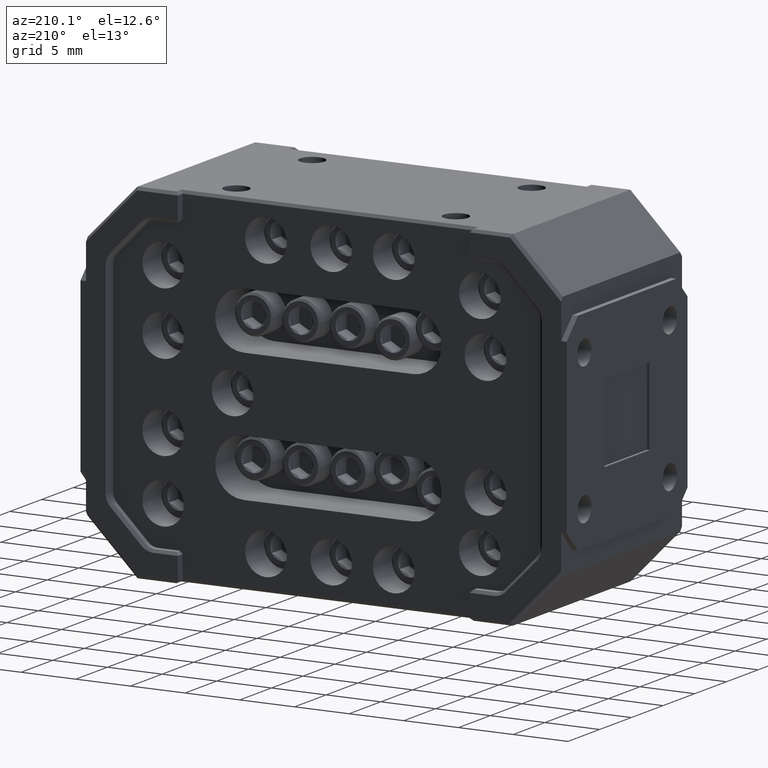
[diagram: clean part render]
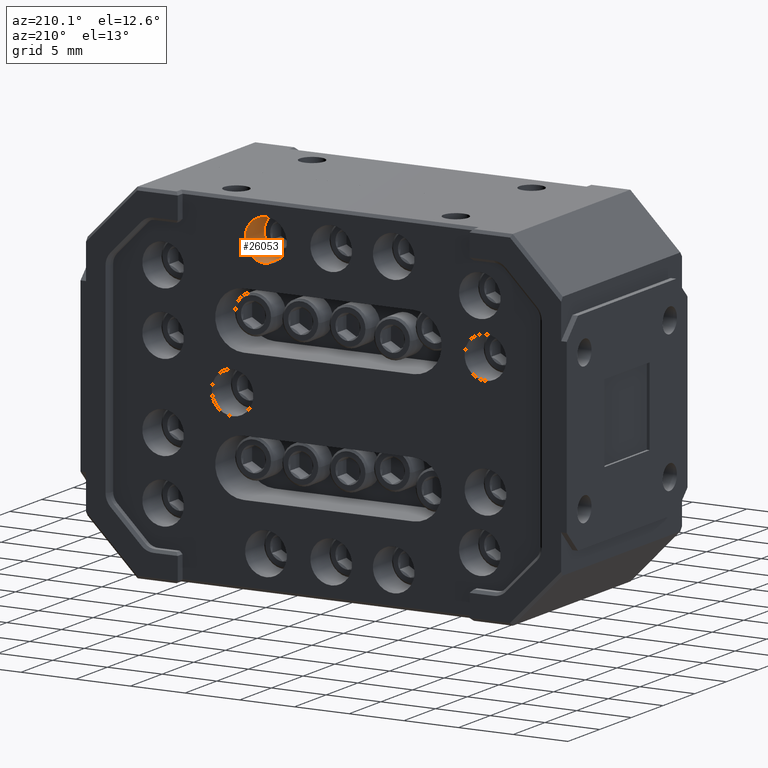
[diagram: same view with one face highlighted and labeled with its STEP entity id]
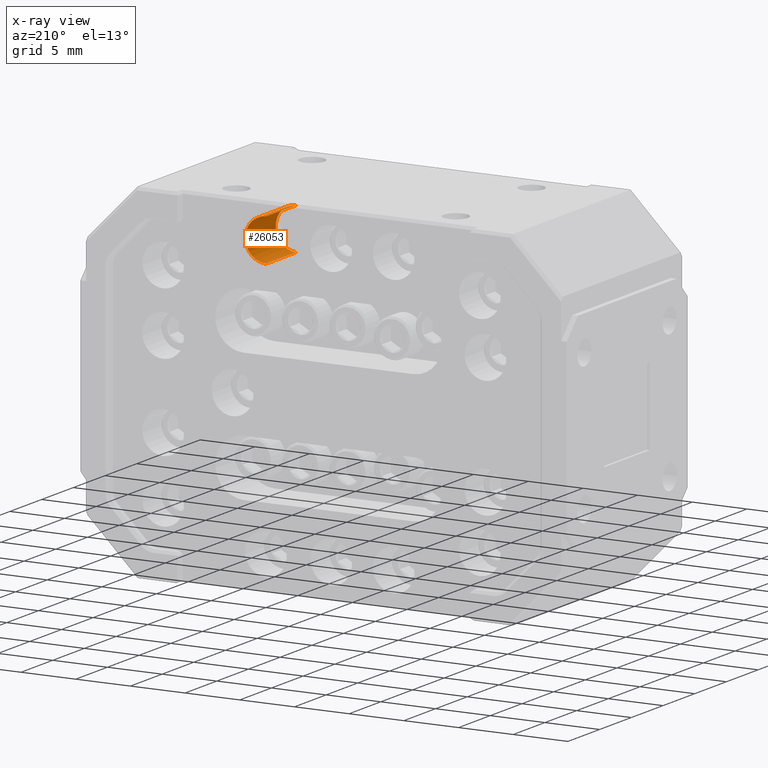
[diagram: x-ray of the same camera — body ghosted, the highlighted face saturated]
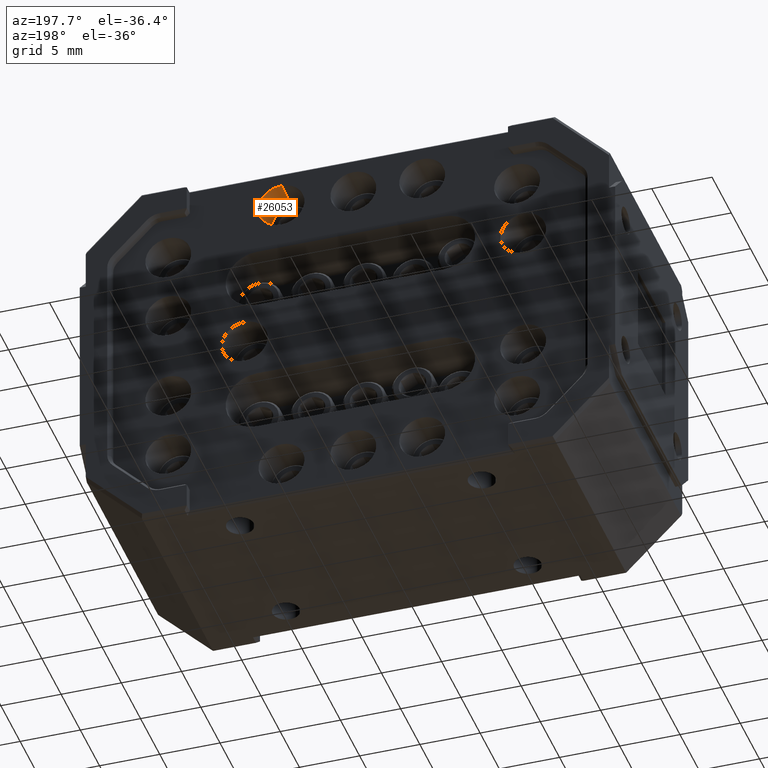
[diagram: same view with one face highlighted and labeled with its STEP entity id]
A machine part, auxiliary view. The second image highlights one B-rep face of the part: STEP entity #26053.
The next image is the same camera in x-ray: the body ghosted, the highlighted face saturated — about 0% of this face is hidden behind the body in this view.
A second angle (auxiliary view) of the same face is appended — the face is thin or edge-on in the first view.
In plain terms, the highlighted cylindrical surface (edge-blend (fillet) strip) has radius 1.905 mm, axis along (0, 1, 0).
Its self-contained STEP definition (entity closure, byte-faithful):
#710 = ORIENTED_EDGE ( 'NONE', *, *, #15335, .F. ) ;
#733 = CARTESIAN_POINT ( 'NONE',  ( 0.2249999999999995060, 0.3450000000000000289, 0.4250000000000018208 ) ) ;
#923 = AXIS2_PLACEMENT_3D ( 'NONE', #3207, #12810, #22074 ) ;
#1150 = VECTOR ( 'NONE', #17640, 39.37007874015748143 ) ;
#2722 = VERTEX_POINT ( 'NONE', #3120 ) ;
#3120 = CARTESIAN_POINT ( 'NONE',  ( 0.2249999999999995060, 0.3450000000000000289, 0.4250000000000018208 ) ) ;
#3207 = CARTESIAN_POINT ( 'NONE',  ( 0.2249999999999995060, 0.3450000000000000289, 0.5000000000000018874 ) ) ;
#3460 = AXIS2_PLACEMENT_3D ( 'NONE', #10848, #15146, #19161 ) ;
#4067 = ORIENTED_EDGE ( 'NONE', *, *, #6911, .T. ) ;
#4316 = CARTESIAN_POINT ( 'NONE',  ( 0.2249999999999995060, 0.1550000000000000266, 0.4250000000000018208 ) ) ;
#4882 = FACE_OUTER_BOUND ( 'NONE', #6099, .T. ) ;
#6099 = EDGE_LOOP ( 'NONE', ( #18405, #9586, #4067, #710 ) ) ;
#6911 = EDGE_CURVE ( 'NONE', #11169, #2722, #20390, .T. ) ;
#9512 = AXIS2_PLACEMENT_3D ( 'NONE', #11633, #21890, #22172 ) ;
#9586 = ORIENTED_EDGE ( 'NONE', *, *, #13520, .T. ) ;
#9898 = VECTOR ( 'NONE', #10606, 39.37007874015748143 ) ;
#10194 = CARTESIAN_POINT ( 'NONE',  ( 0.2249999999999995060, 0.3450000000000000289, 0.5750000000000019540 ) ) ;
#10606 = DIRECTION ( 'NONE',  ( 0.000000000000000000, 1.000000000000000000, 0.000000000000000000 ) ) ;
#10848 = CARTESIAN_POINT ( 'NONE',  ( 0.2249999999999995060, 0.3450000000000000289, 0.5000000000000018874 ) ) ;
#11169 = VERTEX_POINT ( 'NONE', #18626 ) ;
#11633 = CARTESIAN_POINT ( 'NONE',  ( 0.2249999999999995060, 0.1550000000000000266, 0.5000000000000018874 ) ) ;
#12810 = DIRECTION ( 'NONE',  ( 0.000000000000000000, 1.000000000000000000, 0.000000000000000000 ) ) ;
#13058 = CYLINDRICAL_SURFACE ( 'NONE', #3460, 0.07500000000000009437 ) ;
#13520 = EDGE_CURVE ( 'NONE', #22404, #11169, #18649, .T. ) ;
#14651 = EDGE_CURVE ( 'NONE', #22404, #18980, #25885, .T. ) ;
#15146 = DIRECTION ( 'NONE',  ( 0.000000000000000000, 1.000000000000000000, 0.000000000000000000 ) ) ;
#15335 = EDGE_CURVE ( 'NONE', #18980, #2722, #21792, .T. ) ;
#17640 = DIRECTION ( 'NONE',  ( 0.000000000000000000, 1.000000000000000000, 0.000000000000000000 ) ) ;
#18405 = ORIENTED_EDGE ( 'NONE', *, *, #14651, .F. ) ;
#18626 = CARTESIAN_POINT ( 'NONE',  ( 0.2249999999999995060, 0.3450000000000000289, 0.5750000000000018430 ) ) ;
#18649 = LINE ( 'NONE', #10194, #9898 ) ;
#18884 = CARTESIAN_POINT ( 'NONE',  ( 0.2249999999999995060, 0.1550000000000000266, 0.5750000000000018430 ) ) ;
#18980 = VERTEX_POINT ( 'NONE', #4316 ) ;
#19161 = DIRECTION ( 'NONE',  ( 0.000000000000000000, 0.000000000000000000, -1.000000000000000000 ) ) ;
#20390 = CIRCLE ( 'NONE', #923, 0.07500000000000009437 ) ;
#21792 = LINE ( 'NONE', #733, #1150 ) ;
#21890 = DIRECTION ( 'NONE',  ( 0.000000000000000000, 1.000000000000000000, 0.000000000000000000 ) ) ;
#22074 = DIRECTION ( 'NONE',  ( 0.000000000000000000, 0.000000000000000000, -1.000000000000000000 ) ) ;
#22172 = DIRECTION ( 'NONE',  ( 0.000000000000000000, 0.000000000000000000, -1.000000000000000000 ) ) ;
#22404 = VERTEX_POINT ( 'NONE', #18884 ) ;
#25885 = CIRCLE ( 'NONE', #9512, 0.07500000000000009437 ) ;
#26053 = ADVANCED_FACE ( 'NONE', ( #4882 ), #13058, .F. ) ;